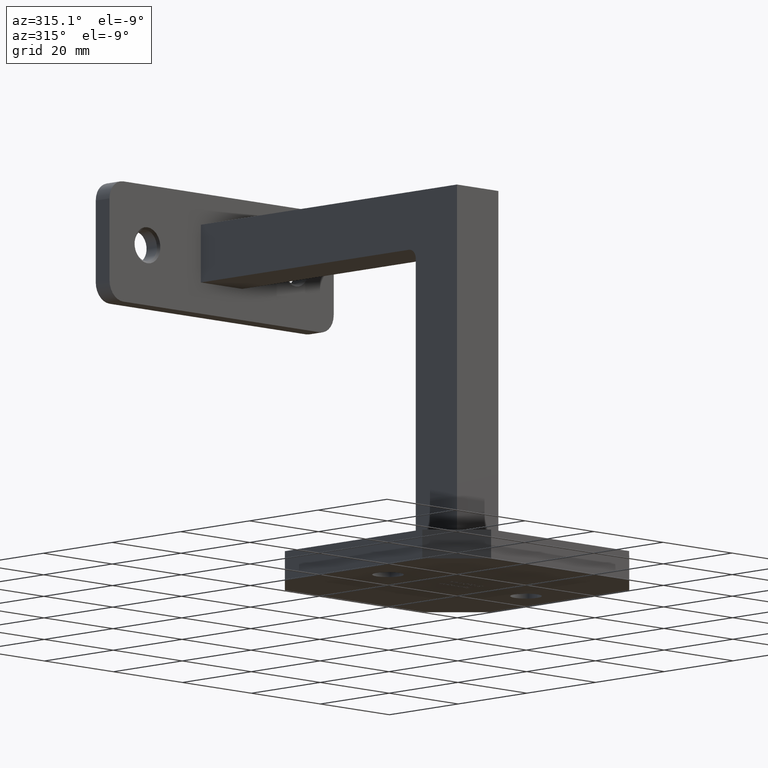
[diagram: clean part render]
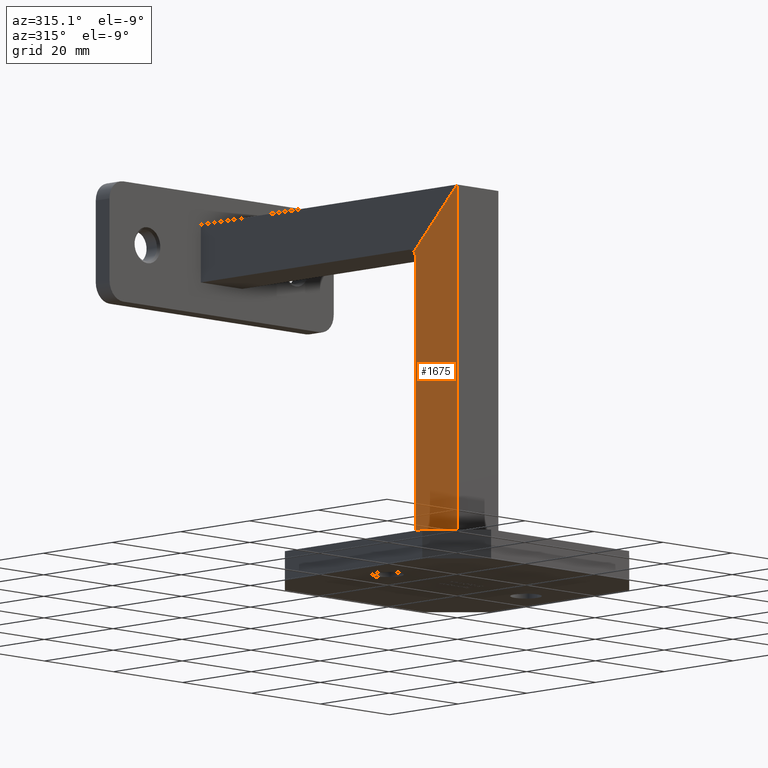
[diagram: same view with one face highlighted and labeled with its STEP entity id]
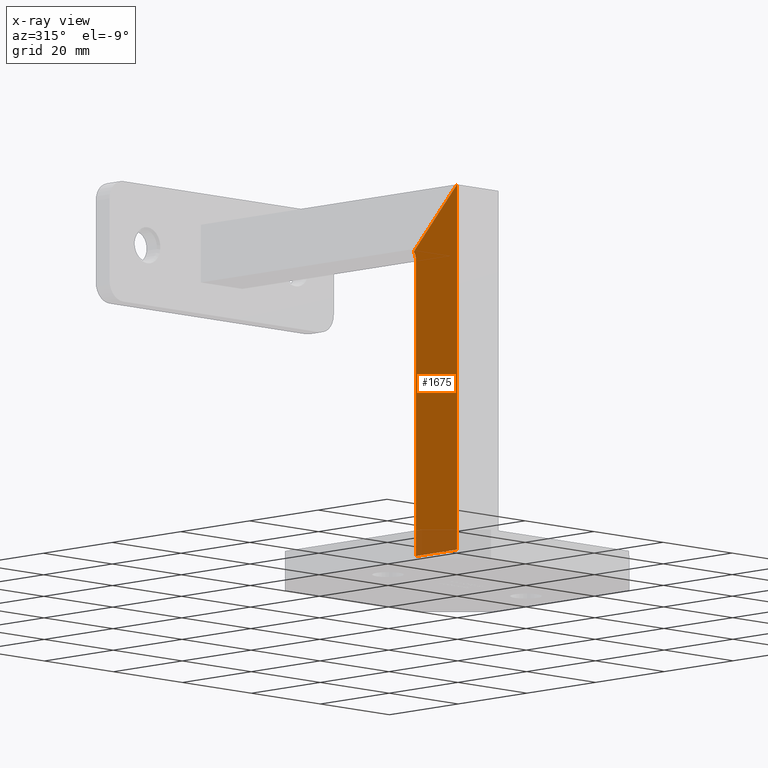
[diagram: x-ray of the same camera — body ghosted, the highlighted face saturated]
A machine part, auxiliary view. The second image highlights one B-rep face of the part: STEP entity #1675.
The next image is the same camera in x-ray: the body ghosted, the highlighted face saturated — about 7% of this face is hidden behind the body in this view.
In plain terms, the highlighted planar face has unit normal (-1, 0, 0).
Its self-contained STEP definition (entity closure, byte-faithful):
#981 = FACE_OUTER_BOUND ( 'NONE', #6182, .T. ) ;
#1206 = EDGE_CURVE ( 'NONE', #17936, #11518, #20498, .T. ) ;
#1435 = VECTOR ( 'NONE', #19314, 1000.000000000000000 ) ;
#1470 = VERTEX_POINT ( 'NONE', #18446 ) ;
#1675 = ADVANCED_FACE ( 'NONE', ( #981 ), #11540, .T. ) ;
#2484 = DIRECTION ( 'NONE',  ( -1.445602896647339410E-16, -1.000000000000000000, -0.000000000000000000 ) ) ;
#2538 = CARTESIAN_POINT ( 'NONE',  ( -5.999999999999997335, 7.999999999999992895, 64.99999999999997158 ) ) ;
#2575 = AXIS2_PLACEMENT_3D ( 'NONE', #22267, #18758, #22410 ) ;
#2787 = EDGE_CURVE ( 'NONE', #10730, #1470, #22412, .T. ) ;
#5138 = DIRECTION ( 'NONE',  ( -0.000000000000000000, 1.224646799147353207E-16, -1.000000000000000000 ) ) ;
#5141 = ORIENTED_EDGE ( 'NONE', *, *, #1206, .T. ) ;
#5509 = VECTOR ( 'NONE', #20075, 1000.000000000000000 ) ;
#5870 = CARTESIAN_POINT ( 'NONE',  ( -5.999999999999999112, -6.000000000000011546, 78.99999999999997158 ) ) ;
#6162 = AXIS2_PLACEMENT_3D ( 'NONE', #2538, #18657, #18735 ) ;
#6182 = EDGE_LOOP ( 'NONE', ( #22147, #12787, #22342, #7154, #5141 ) ) ;
#6389 = LINE ( 'NONE', #16807, #18108 ) ;
#7154 = ORIENTED_EDGE ( 'NONE', *, *, #14450, .T. ) ;
#8560 = CARTESIAN_POINT ( 'NONE',  ( -5.999999999999999112, -6.000000000000011546, 89.97056274847714974 ) ) ;
#10730 = VERTEX_POINT ( 'NONE', #5870 ) ;
#10891 = EDGE_CURVE ( 'NONE', #11518, #14217, #16459, .T. ) ;
#11289 = EDGE_CURVE ( 'NONE', #14217, #1470, #6389, .T. ) ;
#11518 = VERTEX_POINT ( 'NONE', #15793 ) ;
#11540 = PLANE ( 'NONE',  #2575 ) ;
#12787 = ORIENTED_EDGE ( 'NONE', *, *, #11289, .T. ) ;
#14055 = CARTESIAN_POINT ( 'NONE',  ( -5.999999999999997335, 6.585786437626902412, 66.41421356237306384 ) ) ;
#14217 = VERTEX_POINT ( 'NONE', #21246 ) ;
#14450 = EDGE_CURVE ( 'NONE', #10730, #17936, #20816, .T. ) ;
#15793 = CARTESIAN_POINT ( 'NONE',  ( -5.999999999999997335, 5.999999999999992006, 64.99999999999997158 ) ) ;
#16459 = LINE ( 'NONE', #19005, #1435 ) ;
#16807 = CARTESIAN_POINT ( 'NONE',  ( -5.999999999999999112, -6.000000000000000000, 3.070000000000000284 ) ) ;
#17125 = VECTOR ( 'NONE', #5138, 1000.000000000000000 ) ;
#17936 = VERTEX_POINT ( 'NONE', #14055 ) ;
#18108 = VECTOR ( 'NONE', #2484, 1000.000000000000000 ) ;
#18446 = CARTESIAN_POINT ( 'NONE',  ( -5.999999999999999112, -6.000000000000000888, 3.070000000000003393 ) ) ;
#18657 = DIRECTION ( 'NONE',  ( 1.000000000000000000, -1.445602896647339410E-16, -1.770352960217306030E-32 ) ) ;
#18735 = DIRECTION ( 'NONE',  ( 0.000000000000000000, -1.000000000000000000, 2.081668171172168513E-14 ) ) ;
#18758 = DIRECTION ( 'NONE',  ( -1.000000000000000000, 1.445602896647339410E-16, 1.770352960217306030E-32 ) ) ;
#19005 = CARTESIAN_POINT ( 'NONE',  ( -5.999999999999997335, 5.999999999999988454, 89.97056274847714974 ) ) ;
#19314 = DIRECTION ( 'NONE',  ( -0.000000000000000000, 1.224646799147353207E-16, -1.000000000000000000 ) ) ;
#20075 = DIRECTION ( 'NONE',  ( 1.022195611122249425E-16, 0.7071067811865475727, -0.7071067811865474617 ) ) ;
#20498 = CIRCLE ( 'NONE', #6162, 2.000000000000000000 ) ;
#20816 = LINE ( 'NONE', #21942, #5509 ) ;
#21246 = CARTESIAN_POINT ( 'NONE',  ( -5.999999999999997335, 5.999999999999999112, 3.070000000000003393 ) ) ;
#21942 = CARTESIAN_POINT ( 'NONE',  ( -5.999999999999999112, -5.485281374238592633, 78.48528137423856776 ) ) ;
#22147 = ORIENTED_EDGE ( 'NONE', *, *, #10891, .T. ) ;
#22267 = CARTESIAN_POINT ( 'NONE',  ( -5.999999999999997335, 5.999999999999988454, 89.97056274847714974 ) ) ;
#22342 = ORIENTED_EDGE ( 'NONE', *, *, #2787, .F. ) ;
#22410 = DIRECTION ( 'NONE',  ( -1.445602896647339410E-16, -1.000000000000000000, 0.000000000000000000 ) ) ;
#22412 = LINE ( 'NONE', #8560, #17125 ) ;